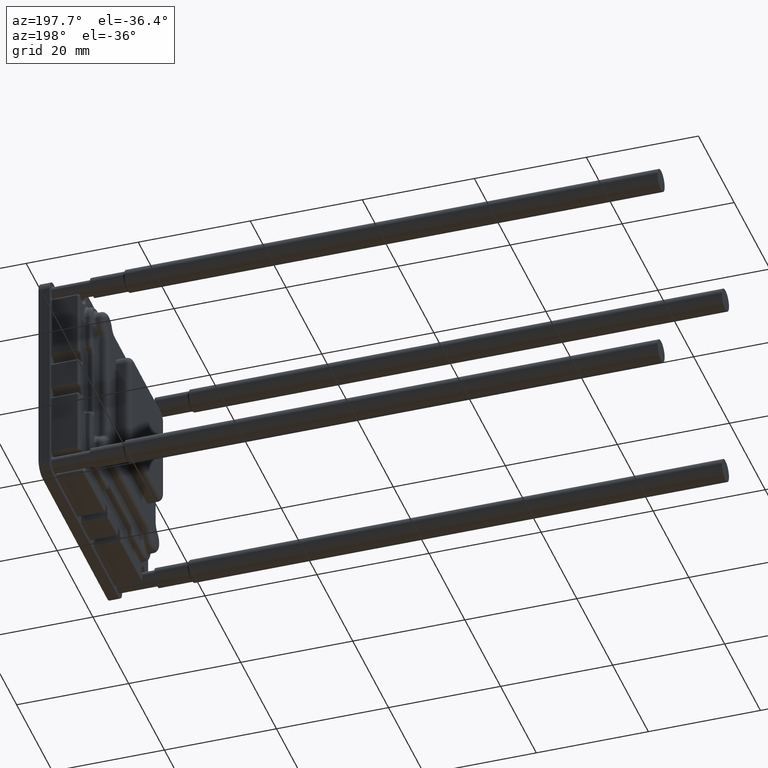
[diagram: clean part render]
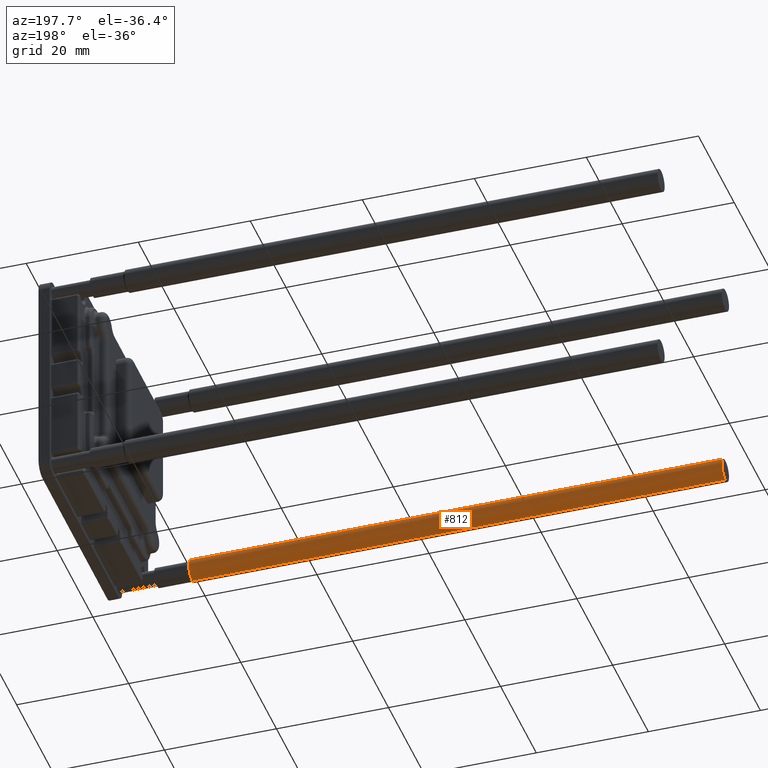
[diagram: same view with one face highlighted and labeled with its STEP entity id]
A machine part, auxiliary view. The second image highlights one B-rep face of the part: STEP entity #812.
In plain terms, the highlighted cylindrical surface (edge-blend (fillet) strip) has radius 2 mm, axis along (-1, 0, 0).
Its self-contained STEP definition (entity closure, byte-faithful):
#445=CYLINDRICAL_SURFACE('',#8834,2.00000000000006);
#812=ADVANCED_FACE('',(#1242),#445,.T.);
#1242=FACE_OUTER_BOUND('',#1693,.F.);
#1693=EDGE_LOOP('',(#3373,#3374,#3375,#3376));
#3373=ORIENTED_EDGE('',*,*,#6279,.F.);
#3374=ORIENTED_EDGE('',*,*,#6287,.F.);
#3375=ORIENTED_EDGE('',*,*,#6280,.T.);
#3376=ORIENTED_EDGE('',*,*,#6288,.T.);
#5283=CIRCLE('',#8404,2.00000000000006);
#5284=CIRCLE('',#8405,2.00000000000006);
#6279=EDGE_CURVE('',#7345,#7344,#5283,.T.);
#6280=EDGE_CURVE('',#7343,#7342,#5284,.T.);
#6287=EDGE_CURVE('',#7343,#7345,#6856,.T.);
#6288=EDGE_CURVE('',#7342,#7344,#6857,.T.);
#6856=LINE('',#12906,#7304);
#6857=LINE('',#12907,#7305);
#7304=VECTOR('',#10295,95.1625749117952);
#7305=VECTOR('',#10296,95.1625749117952);
#7342=VERTEX_POINT('',#11441);
#7343=VERTEX_POINT('',#11442);
#7344=VERTEX_POINT('',#11443);
#7345=VERTEX_POINT('',#11444);
#8404=AXIS2_PLACEMENT_3D('',#12898,#10285,#10286);
#8405=AXIS2_PLACEMENT_3D('',#12899,#10287,#10288);
#8834=AXIS2_PLACEMENT_3D('',#13352,#11169,#11170);
#10285=DIRECTION('',(-1.,0.,0.));
#10286=DIRECTION('',(0.,0.,1.));
#10287=DIRECTION('',(-1.,0.,0.));
#10288=DIRECTION('',(0.,0.,1.));
#10295=DIRECTION('',(1.,0.,0.));
#10296=DIRECTION('',(1.,0.,0.));
#11169=DIRECTION('',(-1.,0.,0.));
#11170=DIRECTION('',(0.,0.,1.));
#11441=CARTESIAN_POINT('',(-33.54757516703,-217.999995498775,16.0000072097392));
#11442=CARTESIAN_POINT('',(-33.54757516703,-217.999995498775,20.0000072097393));
#11443=CARTESIAN_POINT('',(61.6149997447652,-217.999995498775,16.0000072097392));
#11444=CARTESIAN_POINT('',(61.6149997447652,-217.999995498775,20.0000072097393));
#12898=CARTESIAN_POINT('',(61.6149997447652,-217.999995498775,18.0000072097393));
#12899=CARTESIAN_POINT('',(-33.54757516703,-217.999995498775,18.0000072097392));
#12906=CARTESIAN_POINT('',(-33.54757516703,-217.999995498775,20.0000072097393));
#12907=CARTESIAN_POINT('',(-33.54757516703,-217.999995498775,16.0000072097392));
#13352=CARTESIAN_POINT('',(-33.54757516703,-217.999995498775,18.0000072097392));